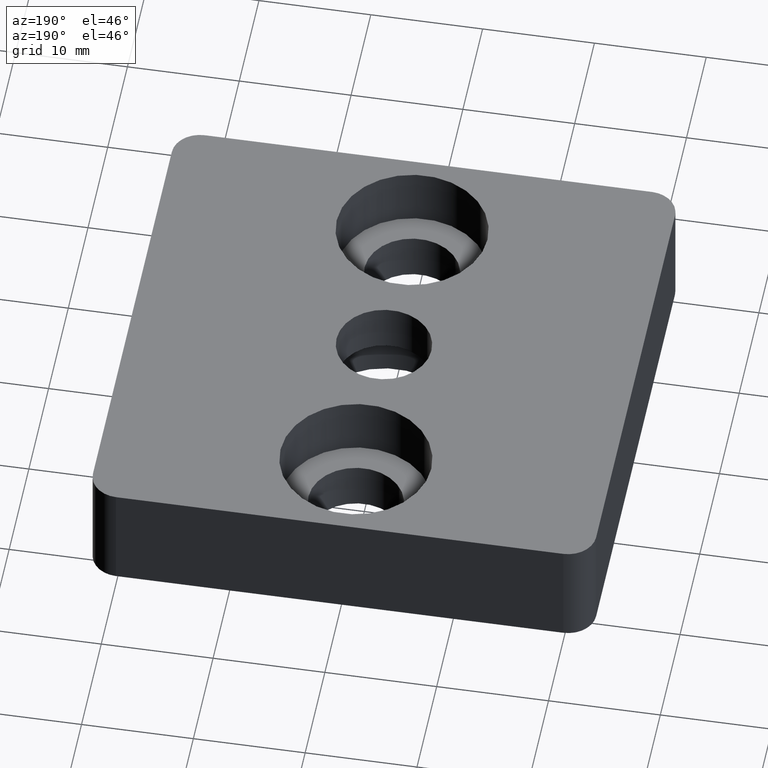
[diagram: clean part render]
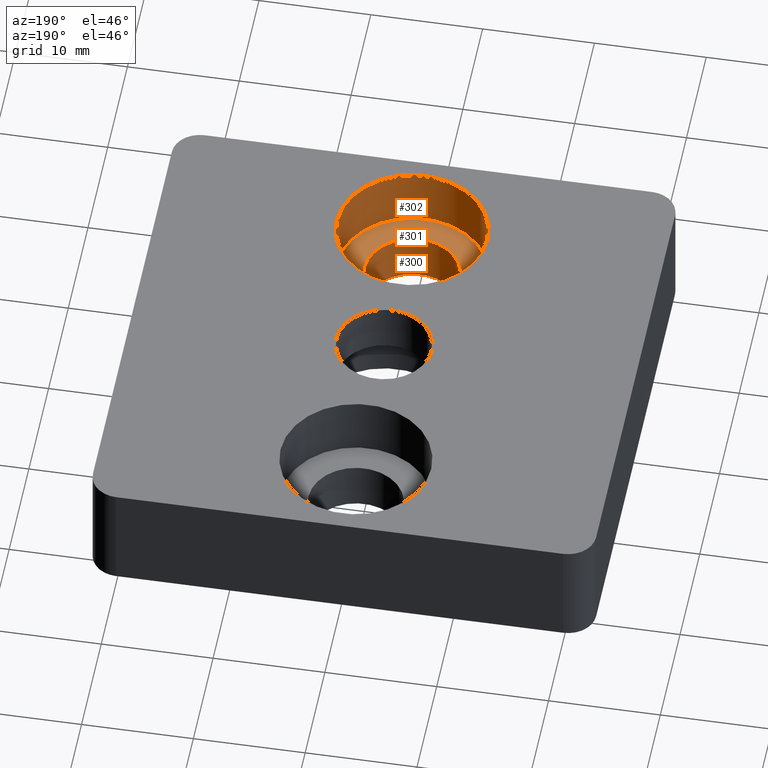
[diagram: same view with one multi-face feature highlighted, each face labeled with its STEP entity id]
A machine part, auxiliary view. The highlighted faces form ONE feature: a stepped (counterbored) hole: 2 coaxial cylindrical walls of radii 4.25 -> 6.75 mm joined by 1 annular planar shoulder face(s). The faces share edges in the B-rep.
Their STEP definitions:
[1] entity #302 (Cylinder):
#23=FACE_BOUND('',#79,.T.);
#51=FACE_OUTER_BOUND('',#78,.T.);
#78=EDGE_LOOP('',(#266));
#79=EDGE_LOOP('',(#267));
#100=CIRCLE('',#328,6.74999999997317);
#107=CIRCLE('',#338,6.74999999997317);
#160=VERTEX_POINT('',#496);
#167=VERTEX_POINT('',#513);
#196=EDGE_CURVE('',#160,#160,#100,.T.);
#203=EDGE_CURVE('',#167,#167,#107,.T.);
#266=ORIENTED_EDGE('',*,*,#196,.T.);
#267=ORIENTED_EDGE('',*,*,#203,.F.);
#285=CYLINDRICAL_SURFACE('',#339,6.74999999997317);
#302=ADVANCED_FACE('',(#51,#23),#285,.F.);
#328=AXIS2_PLACEMENT_3D('',#497,#402,#403);
#338=AXIS2_PLACEMENT_3D('',#514,#422,#423);
#339=AXIS2_PLACEMENT_3D('',#515,#424,#425);
#402=DIRECTION('center_axis',(0.,0.,1.));
#403=DIRECTION('ref_axis',(1.,0.,0.));
#422=DIRECTION('center_axis',(0.,0.,1.));
#423=DIRECTION('ref_axis',(1.,0.,0.));
#424=DIRECTION('center_axis',(0.,0.,1.));
#425=DIRECTION('ref_axis',(1.,0.,0.));
#496=CARTESIAN_POINT('',(-6.74999999997317,-14.2499999999427,-8.113017E-16));
#497=CARTESIAN_POINT('Origin',(0.,-14.2499999999427,-8.113017E-16));
#513=CARTESIAN_POINT('',(-6.74999999997317,-14.2499999999427,-5.5));
#514=CARTESIAN_POINT('Origin',(0.,-14.2499999999427,-5.5));
#515=CARTESIAN_POINT('Origin',(0.,-14.2499999999427,-5.5));
[2] entity #300 (Cylinder):
#21=FACE_BOUND('',#75,.T.);
#49=FACE_OUTER_BOUND('',#74,.T.);
#74=EDGE_LOOP('',(#262));
#75=EDGE_LOOP('',(#263));
#103=CIRCLE('',#332,4.24999999998317);
#106=CIRCLE('',#336,4.24999999998317);
#163=VERTEX_POINT('',#503);
#166=VERTEX_POINT('',#510);
#199=EDGE_CURVE('',#163,#163,#103,.T.);
#202=EDGE_CURVE('',#166,#166,#106,.T.);
#262=ORIENTED_EDGE('',*,*,#199,.F.);
#263=ORIENTED_EDGE('',*,*,#202,.T.);
#284=CYLINDRICAL_SURFACE('',#335,4.24999999998317);
#300=ADVANCED_FACE('',(#49,#21),#284,.F.);
#332=AXIS2_PLACEMENT_3D('',#504,#410,#411);
#335=AXIS2_PLACEMENT_3D('',#509,#416,#417);
#336=AXIS2_PLACEMENT_3D('',#511,#418,#419);
#410=DIRECTION('center_axis',(0.,0.,1.));
#411=DIRECTION('ref_axis',(1.,0.,0.));
#416=DIRECTION('center_axis',(0.,0.,1.));
#417=DIRECTION('ref_axis',(1.,0.,0.));
#418=DIRECTION('center_axis',(0.,0.,1.));
#419=DIRECTION('ref_axis',(1.,0.,0.));
#503=CARTESIAN_POINT('',(-4.24999999998317,-14.2499999999427,-10.));
#504=CARTESIAN_POINT('Origin',(0.,-14.2499999999427,-10.));
#509=CARTESIAN_POINT('Origin',(0.,-14.2499999999427,-11.000016784668));
#510=CARTESIAN_POINT('',(-4.24999999998317,-14.2499999999427,-5.5));
#511=CARTESIAN_POINT('Origin',(0.,-14.2499999999427,-5.5));
[3] entity #301 (Plane):
#22=FACE_BOUND('',#77,.T.);
#36=PLANE('',#337);
#50=FACE_OUTER_BOUND('',#76,.T.);
#76=EDGE_LOOP('',(#264));
#77=EDGE_LOOP('',(#265));
#106=CIRCLE('',#336,4.24999999998317);
#107=CIRCLE('',#338,6.74999999997317);
#166=VERTEX_POINT('',#510);
#167=VERTEX_POINT('',#513);
#202=EDGE_CURVE('',#166,#166,#106,.T.);
#203=EDGE_CURVE('',#167,#167,#107,.T.);
#264=ORIENTED_EDGE('',*,*,#203,.T.);
#265=ORIENTED_EDGE('',*,*,#202,.F.);
#301=ADVANCED_FACE('',(#50,#22),#36,.F.);
#336=AXIS2_PLACEMENT_3D('',#511,#418,#419);
#337=AXIS2_PLACEMENT_3D('',#512,#420,#421);
#338=AXIS2_PLACEMENT_3D('',#514,#422,#423);
#418=DIRECTION('center_axis',(0.,0.,1.));
#419=DIRECTION('ref_axis',(1.,0.,0.));
#420=DIRECTION('center_axis',(0.,0.,-1.));
#421=DIRECTION('ref_axis',(-1.,0.,0.));
#422=DIRECTION('center_axis',(0.,0.,1.));
#423=DIRECTION('ref_axis',(1.,0.,0.));
#510=CARTESIAN_POINT('',(-4.24999999998317,-14.2499999999427,-5.5));
#511=CARTESIAN_POINT('Origin',(0.,-14.2499999999427,-5.5));
#512=CARTESIAN_POINT('Origin',(-13.4999999999463,-27.7499999998891,-5.5));
#513=CARTESIAN_POINT('',(-6.74999999997317,-14.2499999999427,-5.5));
#514=CARTESIAN_POINT('Origin',(0.,-14.2499999999427,-5.5));